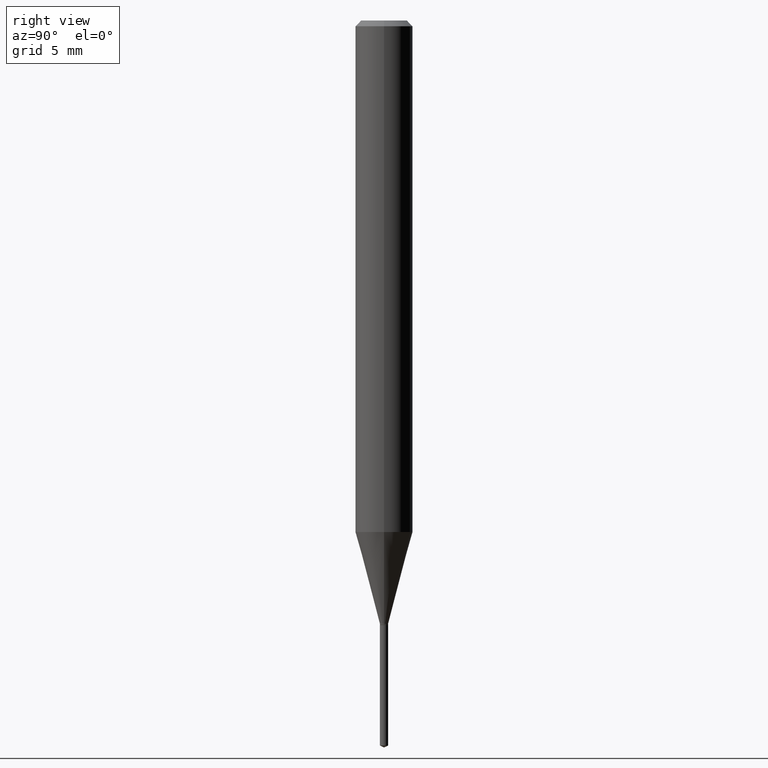
[diagram: clean part render]
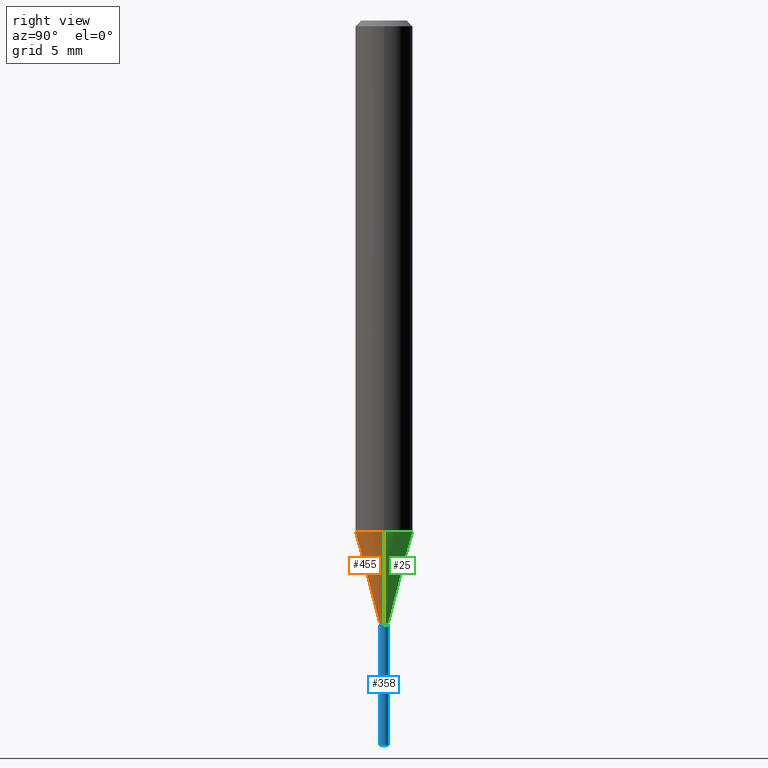
[diagram: same view with three faces highlighted in distinct colors, each labeled with its STEP entity id]
A machine part, right view with three faces highlighted in distinct colors.
Their STEP definitions:

[orange] entity #455 — the highlighted conical surface has half-angle 15 deg.
#1 = LINE ( 'NONE', #481, #478 ) ;
#5 = CIRCLE ( 'NONE', #216, 0.05905000000000013710 ) ;
#8 = EDGE_CURVE ( 'NONE', #188, #15, #1, .T. ) ;
#15 = VERTEX_POINT ( 'NONE', #193 ) ;
#18 = DIRECTION ( 'NONE',  ( 1.000000000000000000, -6.982962677686293532E-15, 0.000000000000000000 ) ) ;
#44 = AXIS2_PLACEMENT_3D ( 'NONE', #466, #246, #367 ) ;
#52 = CARTESIAN_POINT ( 'NONE',  ( 3.036294069759465269E-29, -4.335023230307649634E-15, -1.241600000000000037 ) ) ;
#104 = DIRECTION ( 'NONE',  ( -2.445468806185136597E-29, 3.491481338843145583E-15, 1.000000000000000000 ) ) ;
#110 = DIRECTION ( 'NONE',  ( -0.2588190451025211836, 5.211531920934547886E-15, 0.9659258262890679791 ) ) ;
#132 = ORIENTED_EDGE ( 'NONE', *, *, #346, .T. ) ;
#144 = DIRECTION ( 'NONE',  ( 0.2588190451025211836, 1.565188264969622559E-15, 0.9659258262890679791 ) ) ;
#179 = CIRCLE ( 'NONE', #44, 0.008449999999999999178 ) ;
#183 = DIRECTION ( 'NONE',  ( 1.000000000000000000, -6.982962677686264344E-15, 0.000000000000000000 ) ) ;
#188 = VERTEX_POINT ( 'NONE', #463 ) ;
#193 = CARTESIAN_POINT ( 'NONE',  ( -0.05905000000000013710, -3.256110225879102579E-15, -1.052758229137014556 ) ) ;
#194 = VECTOR ( 'NONE', #144, 39.37007874015748854 ) ;
#216 = AXIS2_PLACEMENT_3D ( 'NONE', #468, #104, #183 ) ;
#217 = DIRECTION ( 'NONE',  ( -2.445468806185136597E-29, 3.491481338843145583E-15, 1.000000000000000000 ) ) ;
#233 = CARTESIAN_POINT ( 'NONE',  ( 0.008449999999999999178, -4.394029264934098821E-15, -1.241600000000000037 ) ) ;
#246 = DIRECTION ( 'NONE',  ( -2.445468806185136597E-29, 3.491481338843145583E-15, 1.000000000000000000 ) ) ;
#247 = VERTEX_POINT ( 'NONE', #233 ) ;
#285 = EDGE_LOOP ( 'NONE', ( #470, #132, #467, #477 ) ) ;
#292 = CARTESIAN_POINT ( 'NONE',  ( 0.008449999999999999178, -4.394029264934098821E-15, -1.241600000000000037 ) ) ;
#294 = CONICAL_SURFACE ( 'NONE', #412, 0.008449999999999999178, 0.2617993877991499074 ) ;
#309 = EDGE_CURVE ( 'NONE', #15, #429, #5, .T. ) ;
#346 = EDGE_CURVE ( 'NONE', #188, #247, #179, .T. ) ;
#363 = FACE_OUTER_BOUND ( 'NONE', #285, .T. ) ;
#367 = DIRECTION ( 'NONE',  ( 1.000000000000000000, -6.982962677686293532E-15, 0.000000000000000000 ) ) ;
#394 = CARTESIAN_POINT ( 'NONE',  ( 0.05905000000000013710, -4.088029657462817781E-15, -1.052758229137014556 ) ) ;
#412 = AXIS2_PLACEMENT_3D ( 'NONE', #52, #217, #18 ) ;
#429 = VERTEX_POINT ( 'NONE', #394 ) ;
#430 = LINE ( 'NONE', #292, #194 ) ;
#447 = EDGE_CURVE ( 'NONE', #247, #429, #430, .T. ) ;
#455 = ADVANCED_FACE ( 'NONE', ( #363 ), #294, .T. ) ;
#463 = CARTESIAN_POINT ( 'NONE',  ( -0.008449999999999999178, -4.278473850474763688E-15, -1.241600000000000037 ) ) ;
#466 = CARTESIAN_POINT ( 'NONE',  ( 3.036294069759465269E-29, -4.335023230307649634E-15, -1.241600000000000037 ) ) ;
#467 = ORIENTED_EDGE ( 'NONE', *, *, #447, .T. ) ;
#468 = CARTESIAN_POINT ( 'NONE',  ( 2.574487409809273648E-29, -3.675685711345442861E-15, -1.052758229137014556 ) ) ;
#470 = ORIENTED_EDGE ( 'NONE', *, *, #8, .F. ) ;
#477 = ORIENTED_EDGE ( 'NONE', *, *, #309, .F. ) ;
#478 = VECTOR ( 'NONE', #110, 39.37007874015748854 ) ;
#481 = CARTESIAN_POINT ( 'NONE',  ( -0.008449999999999999178, -4.274982369135920681E-15, -1.241600000000000037 ) ) ;

[blue] entity #358 — the highlighted cylindrical surface (edge-blend (fillet) strip) has radius 0.2146 mm, axis along (-0, 0, 1).
#2 = EDGE_CURVE ( 'NONE', #222, #224, #227, .T. ) ;
#4 = LINE ( 'NONE', #89, #85 ) ;
#26 = DIRECTION ( 'NONE',  ( -2.433949354103485076E-29, 3.507977849870566318E-15, 1.000000000000000000 ) ) ;
#50 = DIRECTION ( 'NONE',  ( -6.982962677686265922E-15, -1.000000000000000000, 0.000000000000000000 ) ) ;
#63 = CARTESIAN_POINT ( 'NONE',  ( 3.042407741774928155E-29, -4.343751933654757151E-15, -1.244099999999999984 ) ) ;
#81 = DIRECTION ( 'NONE',  ( -2.433949354103485076E-29, 3.507977849870565923E-15, 1.000000000000000000 ) ) ;
#85 = VECTOR ( 'NONE', #421, 39.37007874015748143 ) ;
#89 = CARTESIAN_POINT ( 'NONE',  ( 6.004086117175889264E-17, 0.008449999999995657166, -1.244099999999999984 ) ) ;
#120 = CARTESIAN_POINT ( 'NONE',  ( -5.900603462641853257E-17, -0.008450000000004344661, -1.244099999999999984 ) ) ;
#129 = EDGE_CURVE ( 'NONE', #266, #406, #4, .T. ) ;
#147 = CARTESIAN_POINT ( 'NONE',  ( 6.004086117176498166E-17, 0.008449999999995655431, -1.244099999999999984 ) ) ;
#161 = EDGE_LOOP ( 'NONE', ( #245, #325, #409, #213 ) ) ;
#171 = CARTESIAN_POINT ( 'NONE',  ( -5.900603462641251750E-17, -0.008450000000005218961, -1.492159700288590241 ) ) ;
#209 = AXIS2_PLACEMENT_3D ( 'NONE', #392, #81, #50 ) ;
#211 = EDGE_CURVE ( 'NONE', #222, #266, #479, .T. ) ;
#213 = ORIENTED_EDGE ( 'NONE', *, *, #2, .F. ) ;
#222 = VERTEX_POINT ( 'NONE', #171 ) ;
#224 = VERTEX_POINT ( 'NONE', #320 ) ;
#227 = LINE ( 'NONE', #120, #469 ) ;
#230 = CIRCLE ( 'NONE', #404, 0.008449999999999999178 ) ;
#245 = ORIENTED_EDGE ( 'NONE', *, *, #211, .T. ) ;
#266 = VERTEX_POINT ( 'NONE', #324 ) ;
#320 = CARTESIAN_POINT ( 'NONE',  ( -5.900603462641852024E-17, -0.008450000000004342926, -1.244099999999999984 ) ) ;
#324 = CARTESIAN_POINT ( 'NONE',  ( 6.004086117176495701E-17, 0.008449999999994789804, -1.492159700288590241 ) ) ;
#325 = ORIENTED_EDGE ( 'NONE', *, *, #129, .T. ) ;
#358 = ADVANCED_FACE ( 'NONE', ( #369 ), #396, .T. ) ;
#369 = FACE_OUTER_BOUND ( 'NONE', #161, .T. ) ;
#383 = EDGE_CURVE ( 'NONE', #224, #406, #230, .T. ) ;
#392 = CARTESIAN_POINT ( 'NONE',  ( 3.646172489071447105E-29, -5.213939867712663588E-15, -1.492159700288590241 ) ) ;
#396 = CYLINDRICAL_SURFACE ( 'NONE', #449, 0.008450000000000000913 ) ;
#401 = DIRECTION ( 'NONE',  ( -6.982962677686265922E-15, -1.000000000000000000, 0.000000000000000000 ) ) ;
#404 = AXIS2_PLACEMENT_3D ( 'NONE', #63, #473, #401 ) ;
#406 = VERTEX_POINT ( 'NONE', #147 ) ;
#409 = ORIENTED_EDGE ( 'NONE', *, *, #383, .F. ) ;
#421 = DIRECTION ( 'NONE',  ( -2.433949354103485076E-29, 3.507977849870566318E-15, 1.000000000000000000 ) ) ;
#435 = DIRECTION ( 'NONE',  ( -6.982962677686265922E-15, -1.000000000000000000, 0.000000000000000000 ) ) ;
#438 = CARTESIAN_POINT ( 'NONE',  ( 3.042407741774928155E-29, -4.343751933654757151E-15, -1.244099999999999984 ) ) ;
#449 = AXIS2_PLACEMENT_3D ( 'NONE', #438, #471, #435 ) ;
#469 = VECTOR ( 'NONE', #26, 39.37007874015748143 ) ;
#471 = DIRECTION ( 'NONE',  ( -2.433949354103485076E-29, 3.507977849870565923E-15, 1.000000000000000000 ) ) ;
#473 = DIRECTION ( 'NONE',  ( -2.433949354103485076E-29, 3.507977849870565923E-15, 1.000000000000000000 ) ) ;
#479 = CIRCLE ( 'NONE', #209, 0.008450000000000002648 ) ;

[green] entity #25 — the highlighted conical surface has half-angle 15 deg.
#1 = LINE ( 'NONE', #481, #478 ) ;
#8 = EDGE_CURVE ( 'NONE', #188, #15, #1, .T. ) ;
#10 = AXIS2_PLACEMENT_3D ( 'NONE', #411, #74, #69 ) ;
#15 = VERTEX_POINT ( 'NONE', #193 ) ;
#25 = ADVANCED_FACE ( 'NONE', ( #155 ), #156, .T. ) ;
#36 = EDGE_CURVE ( 'NONE', #247, #188, #43, .T. ) ;
#43 = CIRCLE ( 'NONE', #10, 0.008449999999999999178 ) ;
#66 = ORIENTED_EDGE ( 'NONE', *, *, #36, .T. ) ;
#69 = DIRECTION ( 'NONE',  ( 1.000000000000000000, -6.982962677686293532E-15, 0.000000000000000000 ) ) ;
#74 = DIRECTION ( 'NONE',  ( -2.445468806185136597E-29, 3.491481338843145583E-15, 1.000000000000000000 ) ) ;
#75 = EDGE_CURVE ( 'NONE', #429, #15, #342, .T. ) ;
#103 = AXIS2_PLACEMENT_3D ( 'NONE', #153, #335, #418 ) ;
#110 = DIRECTION ( 'NONE',  ( -0.2588190451025211836, 5.211531920934547886E-15, 0.9659258262890679791 ) ) ;
#111 = DIRECTION ( 'NONE',  ( 1.000000000000000000, -6.982962677686264344E-15, 0.000000000000000000 ) ) ;
#141 = ORIENTED_EDGE ( 'NONE', *, *, #75, .F. ) ;
#143 = EDGE_LOOP ( 'NONE', ( #66, #249, #141, #149 ) ) ;
#144 = DIRECTION ( 'NONE',  ( 0.2588190451025211836, 1.565188264969622559E-15, 0.9659258262890679791 ) ) ;
#149 = ORIENTED_EDGE ( 'NONE', *, *, #447, .F. ) ;
#153 = CARTESIAN_POINT ( 'NONE',  ( 3.036294069759465269E-29, -4.335023230307649634E-15, -1.241600000000000037 ) ) ;
#155 = FACE_OUTER_BOUND ( 'NONE', #143, .T. ) ;
#156 = CONICAL_SURFACE ( 'NONE', #103, 0.008449999999999999178, 0.2617993877991499074 ) ;
#188 = VERTEX_POINT ( 'NONE', #463 ) ;
#193 = CARTESIAN_POINT ( 'NONE',  ( -0.05905000000000013710, -3.256110225879102579E-15, -1.052758229137014556 ) ) ;
#194 = VECTOR ( 'NONE', #144, 39.37007874015748854 ) ;
#233 = CARTESIAN_POINT ( 'NONE',  ( 0.008449999999999999178, -4.394029264934098821E-15, -1.241600000000000037 ) ) ;
#247 = VERTEX_POINT ( 'NONE', #233 ) ;
#249 = ORIENTED_EDGE ( 'NONE', *, *, #8, .T. ) ;
#292 = CARTESIAN_POINT ( 'NONE',  ( 0.008449999999999999178, -4.394029264934098821E-15, -1.241600000000000037 ) ) ;
#300 = DIRECTION ( 'NONE',  ( -2.445468806185136597E-29, 3.491481338843145583E-15, 1.000000000000000000 ) ) ;
#335 = DIRECTION ( 'NONE',  ( -2.445468806185136597E-29, 3.491481338843145583E-15, 1.000000000000000000 ) ) ;
#337 = CARTESIAN_POINT ( 'NONE',  ( 2.574487409809273648E-29, -3.675685711345442861E-15, -1.052758229137014556 ) ) ;
#342 = CIRCLE ( 'NONE', #388, 0.05905000000000013710 ) ;
#388 = AXIS2_PLACEMENT_3D ( 'NONE', #337, #300, #111 ) ;
#394 = CARTESIAN_POINT ( 'NONE',  ( 0.05905000000000013710, -4.088029657462817781E-15, -1.052758229137014556 ) ) ;
#411 = CARTESIAN_POINT ( 'NONE',  ( 3.036294069759465269E-29, -4.335023230307649634E-15, -1.241600000000000037 ) ) ;
#418 = DIRECTION ( 'NONE',  ( 1.000000000000000000, -6.982962677686293532E-15, 0.000000000000000000 ) ) ;
#429 = VERTEX_POINT ( 'NONE', #394 ) ;
#430 = LINE ( 'NONE', #292, #194 ) ;
#447 = EDGE_CURVE ( 'NONE', #247, #429, #430, .T. ) ;
#463 = CARTESIAN_POINT ( 'NONE',  ( -0.008449999999999999178, -4.278473850474763688E-15, -1.241600000000000037 ) ) ;
#478 = VECTOR ( 'NONE', #110, 39.37007874015748854 ) ;
#481 = CARTESIAN_POINT ( 'NONE',  ( -0.008449999999999999178, -4.274982369135920681E-15, -1.241600000000000037 ) ) ;